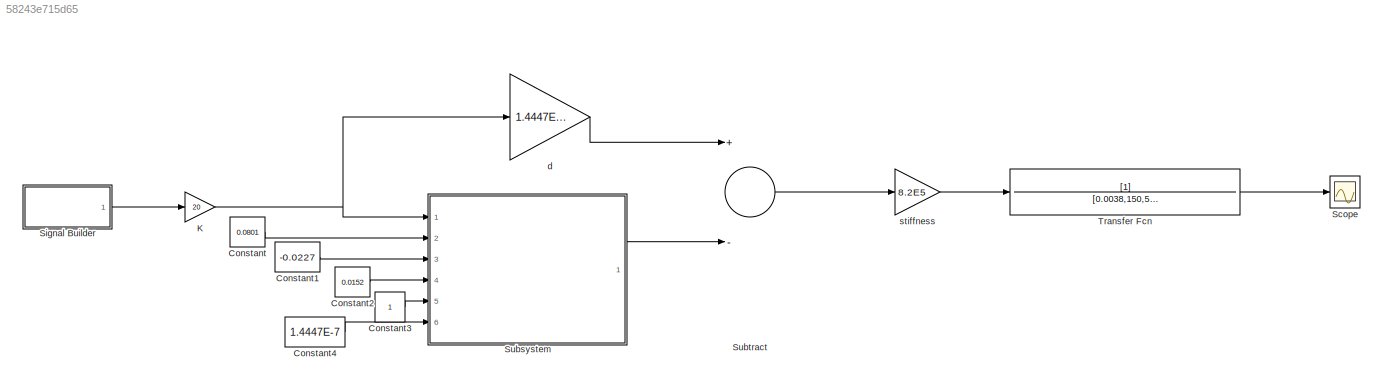
MODEL slx_58243e715d65
KIND model
CONFIG AbsTol = auto
CONFIG EnableMultiTasking = off
CONFIG FixedStep = auto
CONFIG MaxStep = auto
CONFIG MinStep = auto
CONFIG RelTol = 1e-3
CONFIG SampleTimeConstraint = Unconstrained
CONFIG Solver = VariableStepAuto
CONFIG SolverName = VariableStepAuto
CONFIG StartTime = 0.0
CONFIG StopTime = 10.0
BLOCK [Constant] Constant
  Value = 0.0801
BLOCK [Constant] Constant1
  Value = -0.0227
BLOCK [Constant] Constant2
  Value = 0.0152
BLOCK [Constant] Constant3
BLOCK [Constant] Constant4
  Value = 1.4447E-7
BLOCK [Gain] K
  Gain = 20
  OutDataTypeStr = Inherit: Inherit via internal rule
  ParamDataTypeStr = Inherit: Inherit via internal rule
  SaturateOnIntegerOverflow = off
BLOCK [Scope] Scope
  Floating = off
  NumInputPorts = 1
  Ports = [1]
  ScopeSpecificationString = Simulink.scopes.TimeScopeBlockCfg('CurrentConfiguration', extmgr.ConfigurationSet(extmgr.Configuration('Core','General UI',true),extmgr.Configuration('Core','Source UI',true),extmgr.Configuration('Sources','WiredSimulink',true),extmgr.Configuration('Visuals','Time Domain',true,'SerializedDisplays',{struct('MinYLimReal','-0.0000016','MaxYLimReal','0.000002','YLabelReal','','MinYLimMag','0.0000000',...<+1399ch>
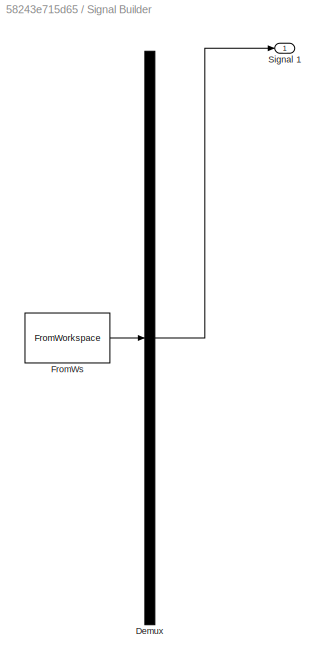
BLOCK [SubSystem] Signal Builder
  ClipboardFcn = sigbuilder_block('clipboard');
  CloseFcn = sigbuilder_block('close');
  ContinueFcn = sigbuilder_block('continue');
  CopyFcn = sigbuilder_block('copy');
  DeleteFcn = sigbuilder_block('delete');
  LoadFcn = sigbuilder_block('load');
  MaskHideContents = on
  ModelCloseFcn = sigbuilder_block('modelClose');
  NameChangeFcn = sigbuilder_block('namechange');
  OpenFcn = sigbuilder_block('open',[437.6 200 550.4 400 ]);
  PauseFcn = sigbuilder_block('pause');
  Ports = [0, 1]
  PreSaveFcn = sigbuilder_block('preSave');
  RequestExecContextInheritance = off
  StartFcn = sigbuilder_block('start');
  StopFcn = sigbuilder_block('stop');
  Tag = STV Subsys
BLOCK [Demux] Signal Builder/Demux
  Outputs = 1
  Ports = [1, 1]
  Tag = STV Demux
BLOCK [FromWorkspace] Signal Builder/FromWs
  SampleTime = 0
  Tag = STV FromWs
  VariableName = tuvar
  ZeroCross = on
BLOCK [Outport] Signal Builder/Signal 1
  IconDisplay = Port number
  Tag = STV Outport
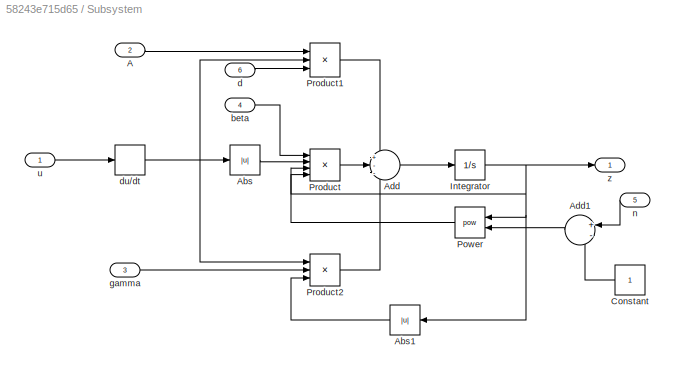
BLOCK [SubSystem] Subsystem
  Ports = [6, 1]
  RequestExecContextInheritance = off
BLOCK [Inport] Subsystem/A
  IconDisplay = Port number
  Port = 2
BLOCK [Abs] Subsystem/Abs
  SaturateOnIntegerOverflow = off
BLOCK [Abs] Subsystem/Abs1
  SaturateOnIntegerOverflow = off
BLOCK [Sum] Subsystem/Add
  IconShape = round
  InputSameDT = off
  Inputs = +--
  OutDataTypeStr = Inherit: Inherit via internal rule
  Ports = [3, 1]
  SaturateOnIntegerOverflow = off
BLOCK [Sum] Subsystem/Add1
  IconShape = round
  InputSameDT = off
  Inputs = +-
  OutDataTypeStr = Inherit: Inherit via internal rule
  Ports = [2, 1]
  SaturateOnIntegerOverflow = off
BLOCK [Constant] Subsystem/Constant
BLOCK [Integrator] Subsystem/Integrator
  Ports = [1, 1]
BLOCK [Math] Subsystem/Power
  Operator = pow
  Ports = [2, 1]
BLOCK [Product] Subsystem/Product
  InputSameDT = off
  Inputs = 4
  OutDataTypeStr = Inherit: Inherit via internal rule
  Ports = [4, 1]
  RndMeth = Floor
  SaturateOnIntegerOverflow = off
BLOCK [Product] Subsystem/Product1
  InputSameDT = off
  Inputs = 3
  OutDataTypeStr = Inherit: Inherit via internal rule
  Ports = [3, 1]
  RndMeth = Floor
  SaturateOnIntegerOverflow = off
BLOCK [Product] Subsystem/Product2
  InputSameDT = off
  Inputs = 3
  OutDataTypeStr = Inherit: Inherit via internal rule
  Ports = [3, 1]
  RndMeth = Floor
  SaturateOnIntegerOverflow = off
BLOCK [Inport] Subsystem/beta
  IconDisplay = Port number
  Port = 4
BLOCK [Inport] Subsystem/d
  IconDisplay = Port number
  Port = 6
BLOCK [Derivative] Subsystem/du//dt
BLOCK [Inport] Subsystem/gamma
  IconDisplay = Port number
  Port = 3
BLOCK [Inport] Subsystem/n
  IconDisplay = Port number
  Port = 5
BLOCK [Inport] Subsystem/u
  IconDisplay = Port number
BLOCK [Outport] Subsystem/z
  IconDisplay = Port number
BLOCK [Sum] Subtract
  InputSameDT = off
  Inputs = +-
  OutDataTypeStr = Inherit: Inherit via internal rule
  Ports = [2, 1]
  SaturateOnIntegerOverflow = off
BLOCK [TransferFcn] Transfer Fcn
  Denominator = [0.0038,150,5E7]
BLOCK [Gain] d
  Gain = 1.4447E-7
  OutDataTypeStr = Inherit: Inherit via internal rule
  ParamDataTypeStr = Inherit: Inherit via internal rule
  SaturateOnIntegerOverflow = off
BLOCK [Gain] stiffness
  Gain = 8.2E5
  OutDataTypeStr = Inherit: Inherit via internal rule
  ParamDataTypeStr = Inherit: Inherit via internal rule
  SaturateOnIntegerOverflow = off
LINE Constant1:1 -> Subsystem:3
LINE Constant2:1 -> Subsystem:4
LINE Constant3:1 -> Subsystem:5
LINE Constant4:1 -> Subsystem:6
LINE Constant:1 -> Subsystem:2
NET K:1 -> Subsystem:1, d:1
LINE Signal Builder:1 -> K:1
LINE Subsystem/A:1 -> Subsystem/Product1:1
LINE Subsystem/Abs1:1 -> Subsystem/Product2:3
LINE Subsystem/Abs:1 -> Subsystem/Product:2
LINE Subsystem/Add1:1 -> Subsystem/Power:2
LINE Subsystem/Add:1 -> Subsystem/Integrator:1
LINE Subsystem/Constant:1 -> Subsystem/Add1:2
NET Subsystem/Integrator:1 -> Subsystem/Abs1:1, Subsystem/Power:1, Subsystem/Product:4, Subsystem/z:1
LINE Subsystem/Power:1 -> Subsystem/Product:3
LINE Subsystem/Product1:1 -> Subsystem/Add:1
LINE Subsystem/Product2:1 -> Subsystem/Add:3
LINE Subsystem/Product:1 -> Subsystem/Add:2
LINE Subsystem/beta:1 -> Subsystem/Product:1
LINE Subsystem/d:1 -> Subsystem/Product1:3
NET Subsystem/du//dt:1 -> Subsystem/Abs:1, Subsystem/Product1:2, Subsystem/Product2:1
LINE Subsystem/gamma:1 -> Subsystem/Product2:2
LINE Subsystem/n:1 -> Subsystem/Add1:1
LINE Subsystem/u:1 -> Subsystem/du//dt:1
LINE Subsystem:1 -> Subtract:2
LINE Subtract:1 -> stiffness:1
LINE Transfer Fcn:1 -> Scope:1
LINE d:1 -> Subtract:1
LINE stiffness:1 -> Transfer Fcn:1
note: NET lines group one-source signal fan-out (src -> all destinations, sorted); 1:1 wires keep LINE
